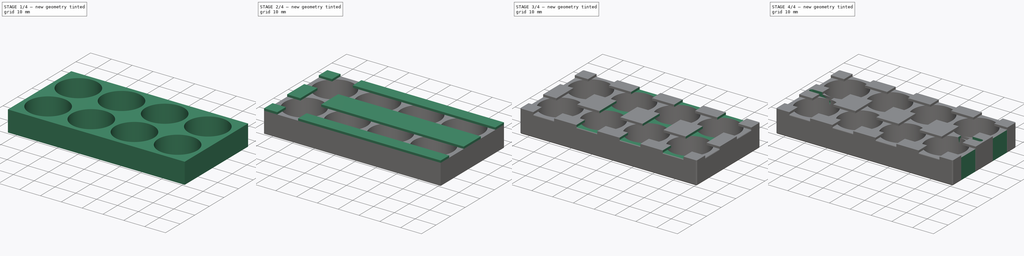
[diagram: build sequence overview — one tinted view per stage of 4, left to right]
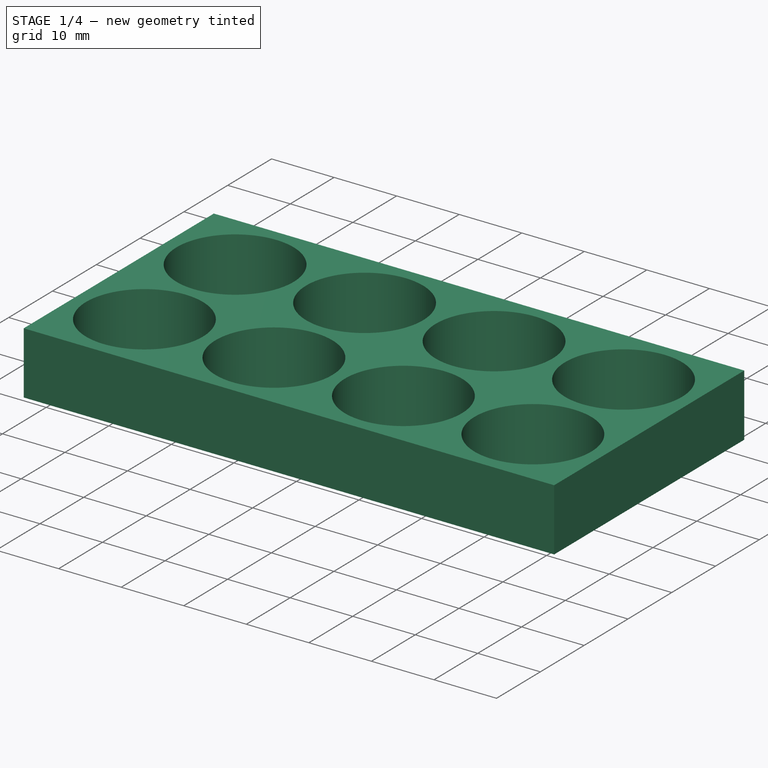
[diagram: stage 1 of 4 — iso view after this stage's code; geometry added in this stage tinted green]
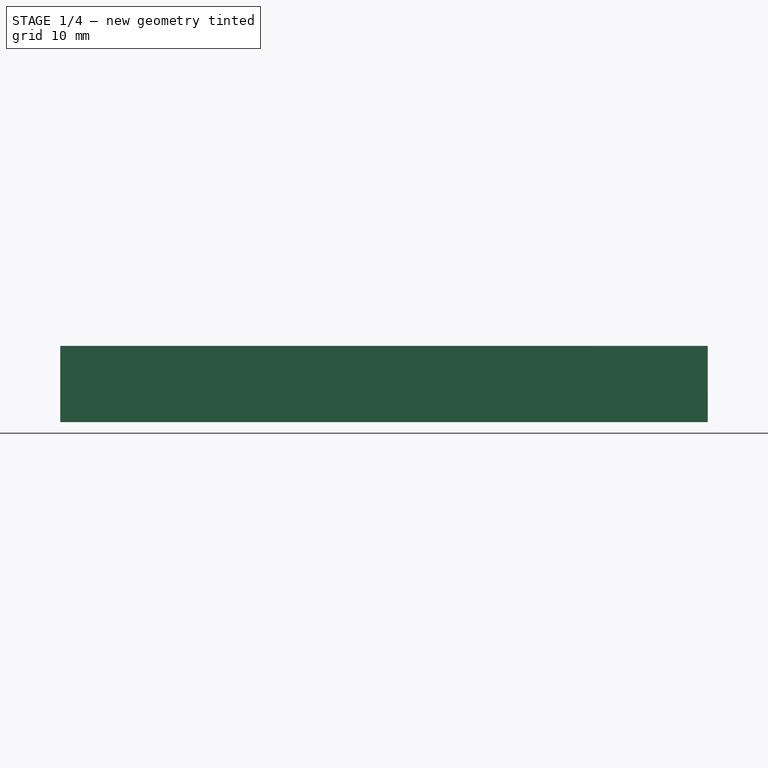
[diagram: stage 1 of 4 — front view after this stage's code; geometry added in this stage tinted green]
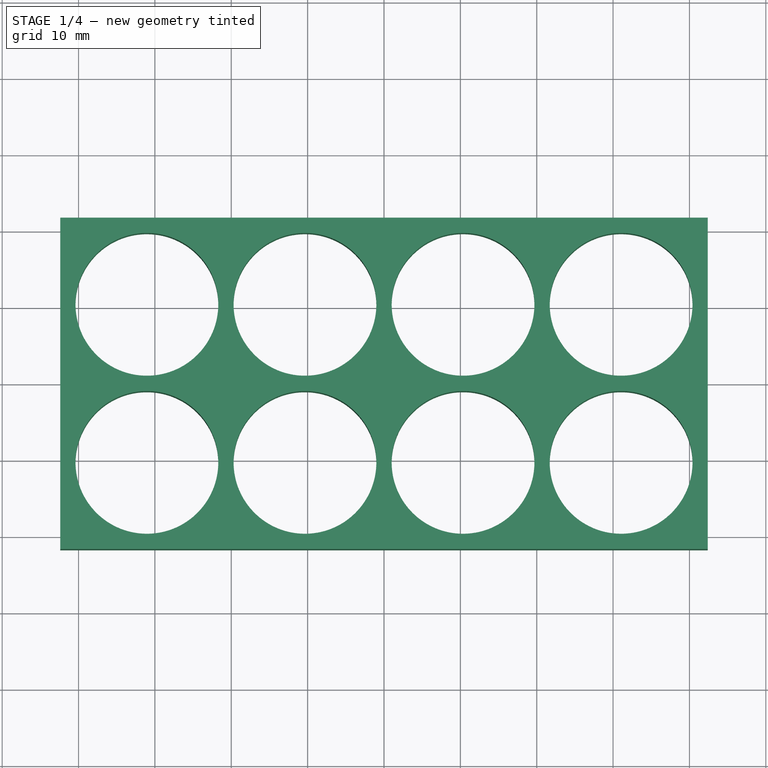
[diagram: stage 1 of 4 — top view after this stage's code; geometry added in this stage tinted green]
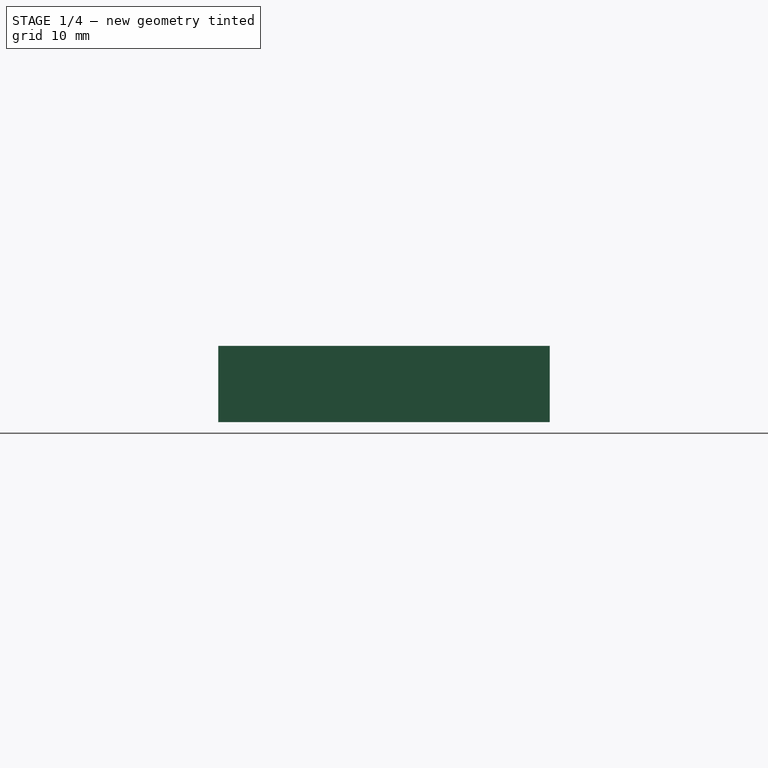
[diagram: stage 1 of 4 — right view after this stage's code; geometry added in this stage tinted green]
FCSTD DOCUMENT  (FreeCAD 0.19R24276 (Git))
Label: suporte18650_novo
License: All rights reserved
LicenseURL: http://en.wikipedia.org/wiki/All_rights_reserved
objects: Sketcher::SketchObject×9, PartDesign::Pocket×7, PartDesign::LinearPattern×3, PartDesign::Pad×2, PartDesign::MultiTransform×2, PartDesign::Fillet×1, PartDesign::Body×1
note: 35 computed .brp shape members not serialized (recipe doc carries the construction recipe); baked Part::Feature solids carry a one-line shape summary decoded from their .brp

FEATURE [Sketcher::SketchObject] Sketch
  FullyConstrained = true
  MapMode = 5
  Support = -> [XY_Plane]
  expr: Constraints[8] = 18.7 * 4 + 2 * 5
  expr: Constraints[9] = 18.7 * 2 + 2 * 3
  expr: Constraints[10] = (18.7 * 4 + 2 * 5) / 2
  expr: Constraints[11] = (18.7 * 2 + 2 * 3) / 2
  sketch-geometry (4):
    g0: LineSegment StartX=-42.4 StartY=21.7 StartZ=0 EndX=42.4 EndY=21.7 EndZ=0
    g1: LineSegment StartX=42.4 StartY=21.7 StartZ=0 EndX=42.4 EndY=-21.7 EndZ=0
    g2: LineSegment StartX=42.4 StartY=-21.7 StartZ=0 EndX=-42.4 EndY=-21.7 EndZ=0
    g3: LineSegment StartX=-42.4 StartY=-21.7 StartZ=0 EndX=-42.4 EndY=21.7 EndZ=0
  constraints (12):
    c: Coincident(g0,g1)
    c: Coincident(g1,g2)
    c: Coincident(g2,g3)
    c: Coincident(g3,g0)
    c: Horizontal(g0)
    c: Horizontal(g2)
    c: Vertical(g1)
    c: Vertical(g3)
    c: DistanceX(g0,g0) = 84.8
    c: DistanceY(g1,g1) = 43.4
    c: DistanceX(g0) = 42.4
    c: DistanceY(g0) = 21.7
FEATURE [PartDesign::Pad] Pad
  Direction = (1,1,1)
  Length = 10
  Length2 = 100
  Profile = -> Sketch
  Type = 0
FEATURE [Sketcher::SketchObject] Sketch001
  FullyConstrained = true
  MapMode = 5
  Placement = pos=(0,0,10) rot=(0,0,1;0rad)
  Support = -> [Pad]
  expr: Constraints[0] = 18.7 / 2
  expr: Constraints[2] = -(18.7 / 2 + 1)
  expr: Constraints[1] = -(1 + 18.7 + 2 + 18.7 / 2)
  sketch-geometry (1):
    g0: Circle CenterX=-31.05 CenterY=-10.35 CenterZ=0 NormalX=0 NormalY=0 NormalZ=1 AngleXU=0 Radius=9.35
  constraints (3):
    c: Radius(g0) = 9.35
    c: DistanceX(g0) = -31.05
    c: DistanceY(g0) = -10.35
FEATURE [PartDesign::Pocket] Pocket
  BaseFeature = -> Pad
  Length = 10
  Length2 = 100
  Profile = -> Sketch001
  Type = 0
FEATURE [PartDesign::LinearPattern] LinearPattern
  Direction = -> Sketch001 [H_Axis]
  Length = 62.1
  Occurrences = 4
  expr: Length = 18.7 * 3 + 2 * 3
FEATURE [PartDesign::LinearPattern] LinearPattern001
  Direction = -> Sketch001 [V_Axis]
  Length = 20.7
  Occurrences = 2
  expr: Length = 18.7 + 2
FEATURE [PartDesign::MultiTransform] MultiTransform
  BaseFeature = -> Pocket
  Originals = -> [Pocket]
  Transformations = -> [LinearPattern,LinearPattern001]
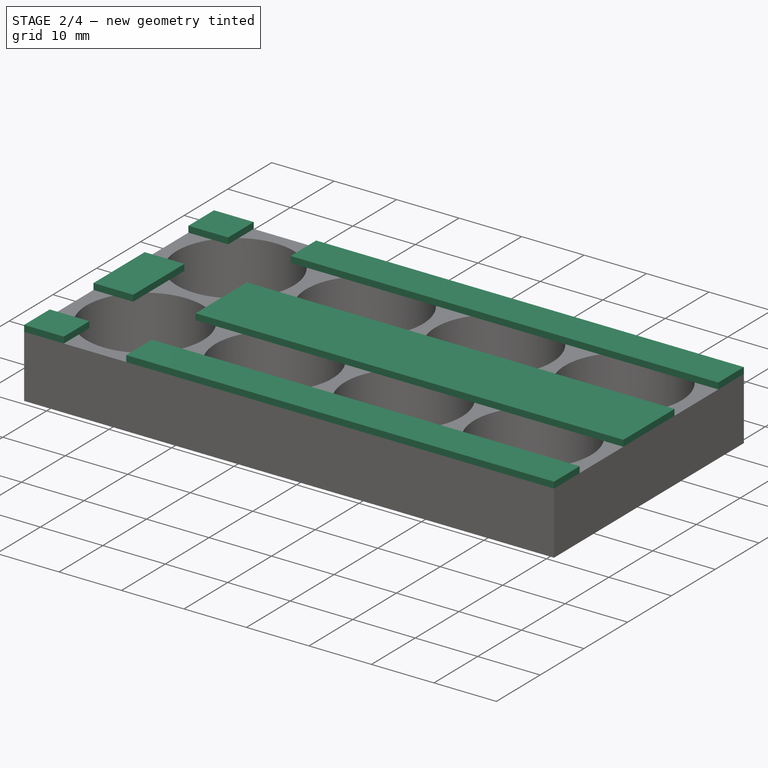
[diagram: stage 2 of 4 — iso view after this stage's code; geometry added in this stage tinted green]
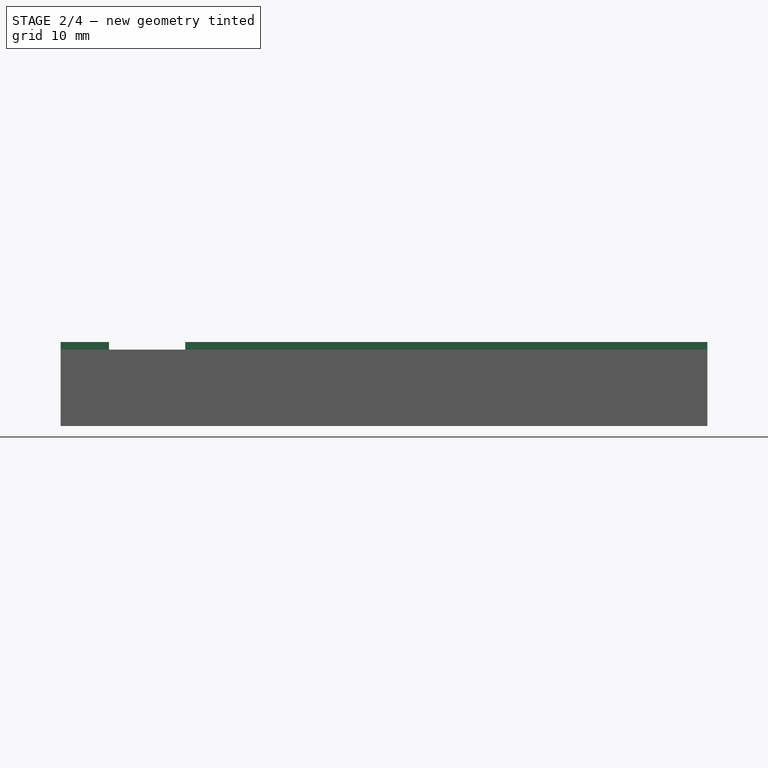
[diagram: stage 2 of 4 — front view after this stage's code; geometry added in this stage tinted green]
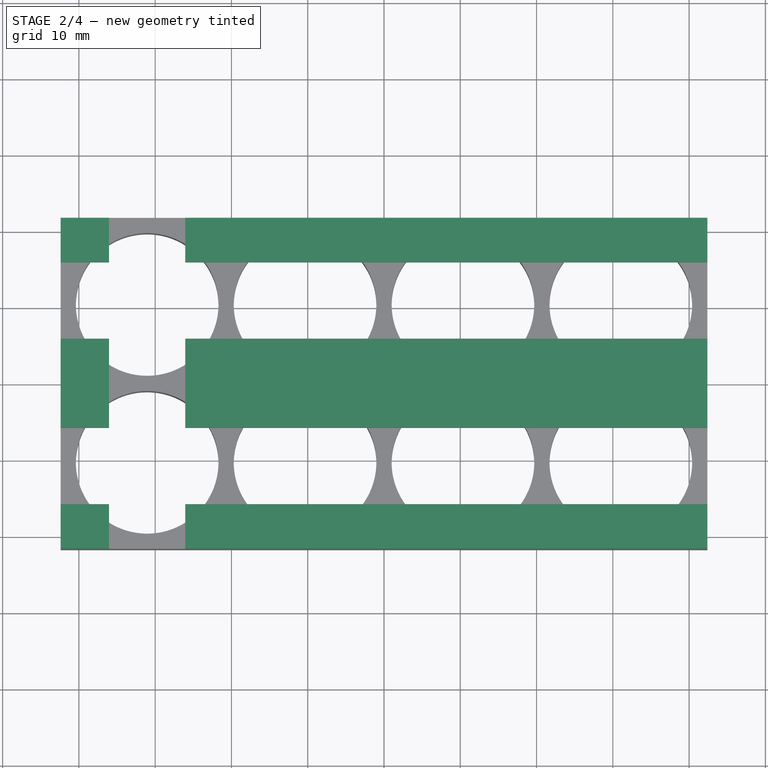
[diagram: stage 2 of 4 — top view after this stage's code; geometry added in this stage tinted green]
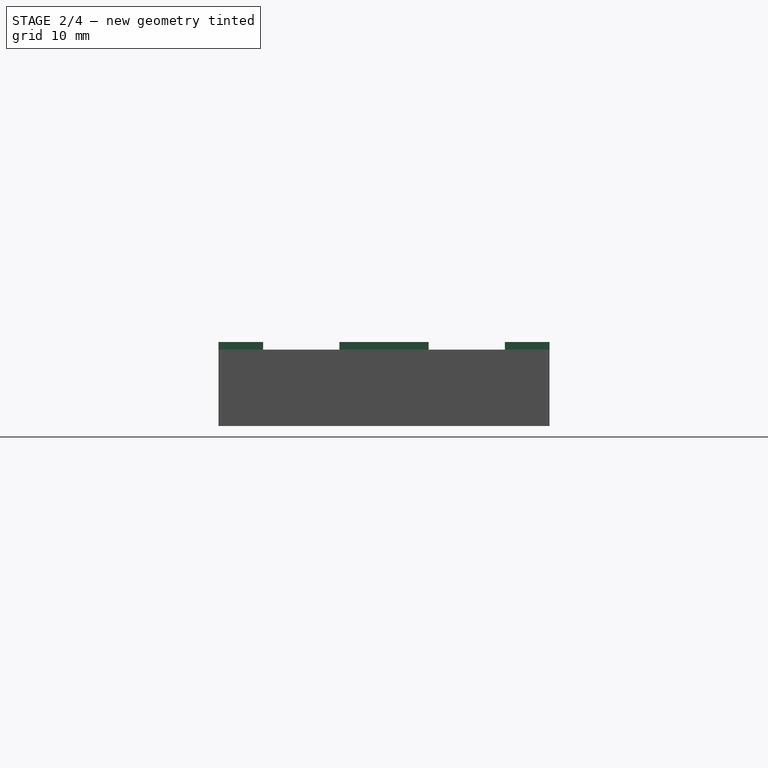
[diagram: stage 2 of 4 — right view after this stage's code; geometry added in this stage tinted green]
FEATURE [Sketcher::SketchObject] Sketch002
  FullyConstrained = true
  MapMode = 5
  Placement = pos=(0,0,10) rot=(0,0,1;0rad)
  Support = -> [MultiTransform]
  expr: Constraints[8] = 18.7 * 4 + 2 * 5
  expr: Constraints[9] = 18.7 * 2 + 2 * 3
  expr: Constraints[10] = (18.7 * 4 + 2 * 5) / 2
  expr: Constraints[11] = (18.7 * 2 + 2 * 3) / 2
  sketch-geometry (4):
    g0: LineSegment StartX=-42.4 StartY=21.7 StartZ=0 EndX=42.4 EndY=21.7 EndZ=0
    g1: LineSegment StartX=42.4 StartY=21.7 StartZ=0 EndX=42.4 EndY=-21.7 EndZ=0
    g2: LineSegment StartX=42.4 StartY=-21.7 StartZ=0 EndX=-42.4 EndY=-21.7 EndZ=0
    g3: LineSegment StartX=-42.4 StartY=-21.7 StartZ=0 EndX=-42.4 EndY=21.7 EndZ=0
  constraints (12):
    c: Coincident(g0,g1)
    c: Coincident(g1,g2)
    c: Coincident(g2,g3)
    c: Coincident(g3,g0)
    c: Horizontal(g0)
    c: Horizontal(g2)
    c: Vertical(g1)
    c: Vertical(g3)
    c: DistanceX(g0,g0) = 84.8
    c: DistanceY(g1,g1) = 43.4
    c: DistanceX(g0) = 42.4
    c: DistanceY(g0) = 21.7
FEATURE [PartDesign::Pad] Pad001
  BaseFeature = -> MultiTransform
  Direction = (1,1,1)
  Length = 1
  Length2 = 100
  Profile = -> Sketch002
  Type = 0
FEATURE [Sketcher::SketchObject] Sketch003
  FullyConstrained = true
  MapMode = 5
  Placement = pos=(0,0,11) rot=(0,0,1;0rad)
  Support = -> [Pad001]
  expr: Constraints[9] = 18.7 * 4 + 2 * 5
  expr: Constraints[10] = (18.7 * 4 + 2 * 5) / 2
  expr: Constraints[11] = ((18.7 * 2 + 2 * 3) / 2 - 10) / 2
  expr: Constraints[23] = -((18.7 * 2 + 2 * 3) / 2 - 10) / 2
  sketch-geometry (8):
    g0: LineSegment StartX=-42.4 StartY=15.85 StartZ=0 EndX=42.4 EndY=15.85 EndZ=0
    g1: LineSegment StartX=42.4 StartY=15.85 StartZ=0 EndX=42.4 EndY=5.85 EndZ=0
    g2: LineSegment StartX=42.4 StartY=5.85 StartZ=0 EndX=-42.4 EndY=5.85 EndZ=0
    g3: LineSegment StartX=-42.4 StartY=5.85 StartZ=0 EndX=-42.4 EndY=15.85 EndZ=0
    g4: LineSegment StartX=-42.4 StartY=-5.85 StartZ=0 EndX=42.4 EndY=-5.85 EndZ=0
    g5: LineSegment StartX=42.4 StartY=-5.85 StartZ=0 EndX=42.4 EndY=-15.85 EndZ=0
    g6: LineSegment StartX=42.4 StartY=-15.85 StartZ=0 EndX=-42.4 EndY=-15.85 EndZ=0
    g7: LineSegment StartX=-42.4 StartY=-15.85 StartZ=0 EndX=-42.4 EndY=-5.85 EndZ=0
  constraints (24):
    c: Coincident(g0,g1)
    c: Coincident(g1,g2)
    c: Coincident(g2,g3)
    c: Coincident(g3,g0)
    c: Horizontal(g0)
    c: Horizontal(g2)
    c: Vertical(g1)
    c: Vertical(g3)
    c: DistanceY(g1,g1) = 10
    c: DistanceX(g0,g0) = 84.8
    c: DistanceX(g1) = 42.4
    c: DistanceY(g1) = 5.85
    c: Coincident(g4,g5)
    c: Coincident(g5,g6)
    c: Coincident(g6,g7)
    c: Coincident(g7,g4)
    c: Horizontal(g4)
    c: Horizontal(g6)
    c: Vertical(g5)
    c: Vertical(g7)
    c: Equal(g1,g5)
    c: Equal(g0,g4)
    c: DistanceX(g4) = 42.4
    c: DistanceY(g4) = -5.85
FEATURE [PartDesign::Pocket] Pocket001
  BaseFeature = -> Pad001
  Length = 1
  Length2 = 100
  Profile = -> Sketch003
  Type = 0
FEATURE [Sketcher::SketchObject] Sketch004
  FullyConstrained = true
  MapMode = 5
  Placement = pos=(0,0,11) rot=(0,0,1;0rad)
  Support = -> [Pocket001]
  expr: Constraints[8] = 18.7 * 2 + 2 * 3
  expr: Constraints[11] = (18.7 * 2 + 2 * 3) / 2
  expr: Constraints[10] = -(1 + 18.7 + 2 + 18.7 / 2 - 5)
  sketch-geometry (4):
    g0: LineSegment StartX=-36.05 StartY=21.7 StartZ=0 EndX=-26.05 EndY=21.7 EndZ=0
    g1: LineSegment StartX=-26.05 StartY=21.7 StartZ=0 EndX=-26.05 EndY=-21.7 EndZ=0
    g2: LineSegment StartX=-26.05 StartY=-21.7 StartZ=0 EndX=-36.05 EndY=-21.7 EndZ=0
    g3: LineSegment StartX=-36.05 StartY=-21.7 StartZ=0 EndX=-36.05 EndY=21.7 EndZ=0
  constraints (12):
    c: Coincident(g0,g1)
    c: Coincident(g1,g2)
    c: Coincident(g2,g3)
    c: Coincident(g3,g0)
    c: Horizontal(g0)
    c: Horizontal(g2)
    c: Vertical(g1)
    c: Vertical(g3)
    c: DistanceY(g3,g3) = 43.4
    c: DistanceX(g0,g0) = 10
    c: DistanceX(g0) = -26.05
    c: DistanceY(g0) = 21.7
FEATURE [PartDesign::Pocket] Pocket002
  BaseFeature = -> Pocket001
  Length = 1
  Length2 = 100
  Profile = -> Sketch004
  Type = 0
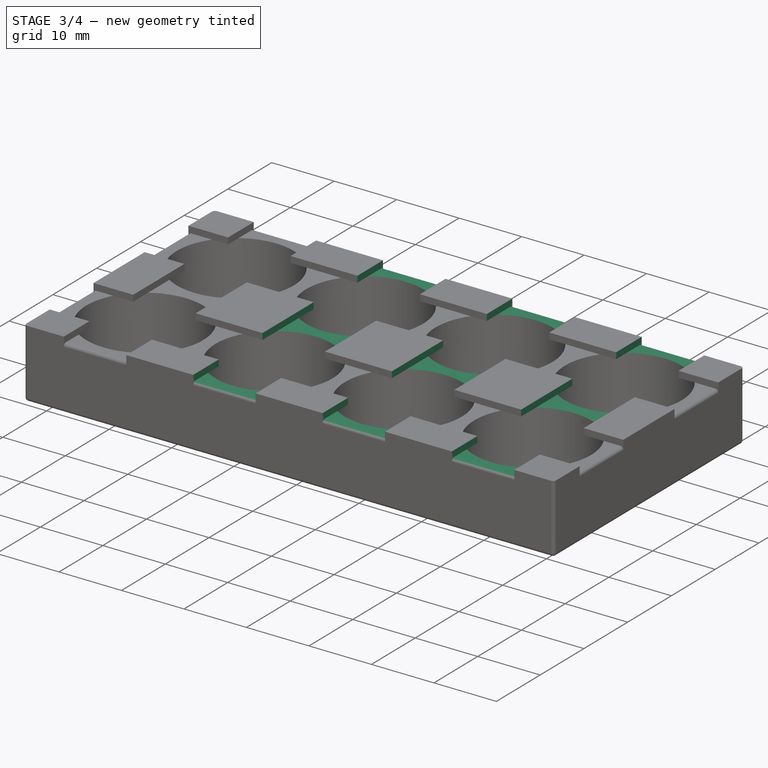
[diagram: stage 3 of 4 — iso view after this stage's code; geometry added in this stage tinted green]
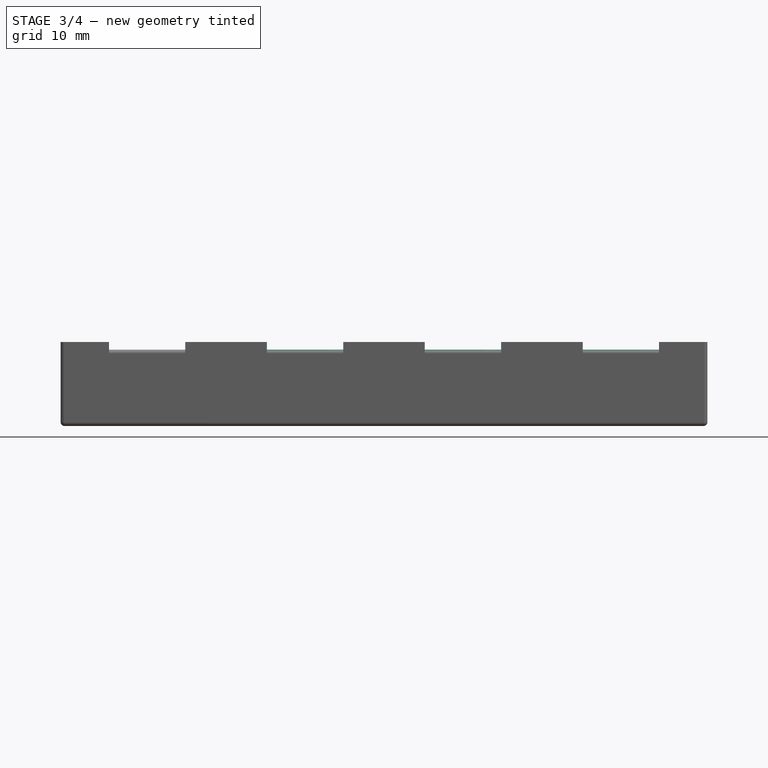
[diagram: stage 3 of 4 — front view after this stage's code; geometry added in this stage tinted green]
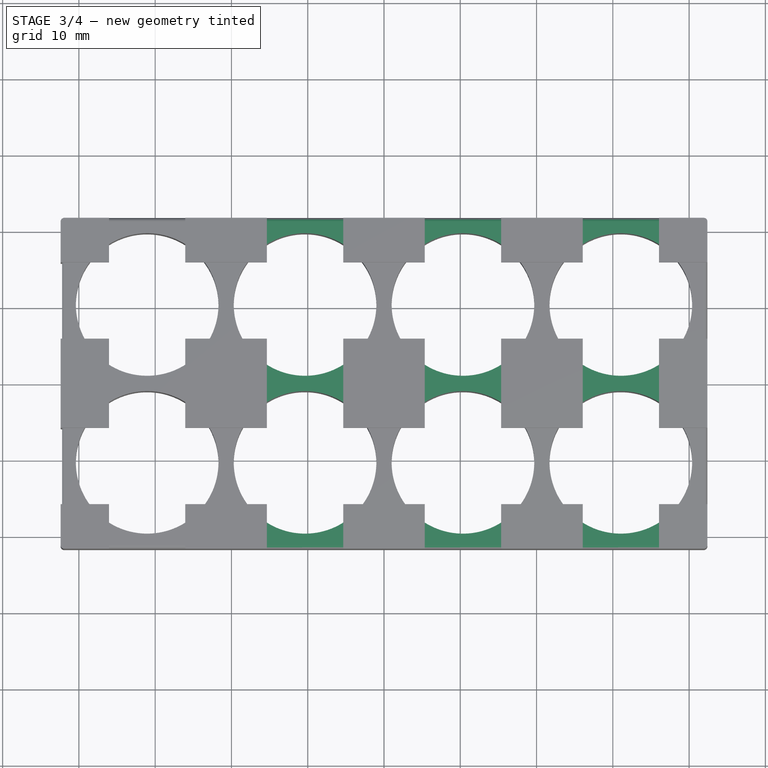
[diagram: stage 3 of 4 — top view after this stage's code; geometry added in this stage tinted green]
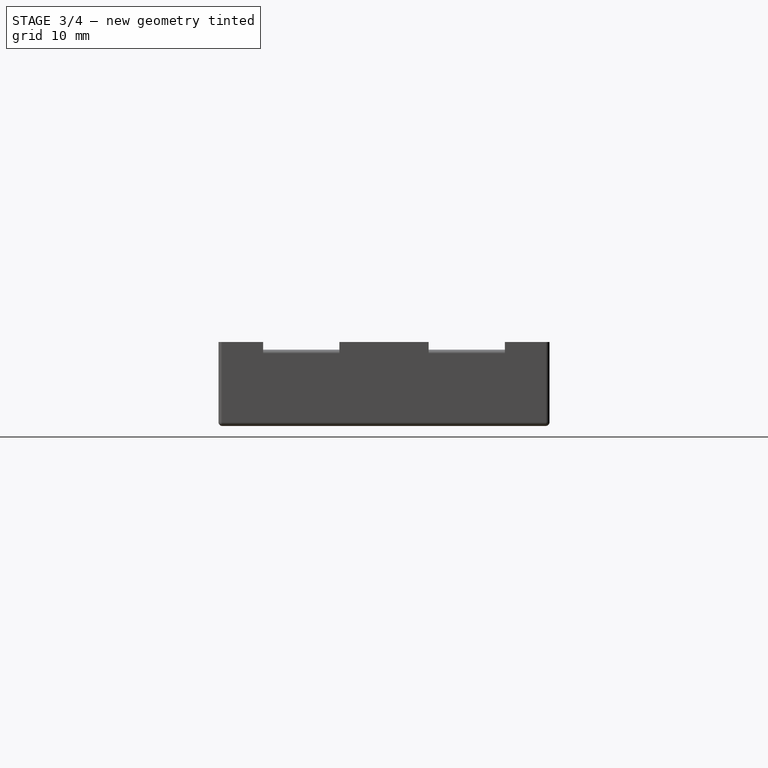
[diagram: stage 3 of 4 — right view after this stage's code; geometry added in this stage tinted green]
FEATURE [PartDesign::LinearPattern] LinearPattern002
  Direction = -> Sketch004 [H_Axis]
  Length = 62.1
  Occurrences = 4
  expr: Length = 18.7 * 3 + 2 * 3
FEATURE [PartDesign::MultiTransform] MultiTransform001
  BaseFeature = -> Pocket002
  Originals = -> [Pocket002]
  Transformations = -> [LinearPattern002]
FEATURE [PartDesign::Fillet] Fillet
  Base = -> MultiTransform001 [Face14,Face3,Face2,Face1,Face4]
  BaseFeature = -> MultiTransform001
  Radius = 0.5
  SupportTransform = false
FEATURE [Sketcher::SketchObject] Sketch005
  ExternalGeometry = -> [Fillet]
  FullyConstrained = true
  MapMode = 5
  Placement = pos=(-42.4,0,0) rot=(0.57735,-0.57735,-0.57735;2.0944rad)
  Support = -> [Fillet]
  sketch-geometry (8):
    g0: LineSegment StartX=-15.85 StartY=10 StartZ=0 EndX=-5.85 EndY=10 EndZ=0
    g1: LineSegment StartX=-5.85 StartY=10 StartZ=0 EndX=-5.85 EndY=0 EndZ=0
    g2: LineSegment StartX=-5.85 StartY=0 StartZ=0 EndX=-15.85 EndY=0 EndZ=0
    g3: LineSegment StartX=-15.85 StartY=0 StartZ=0 EndX=-15.85 EndY=10 EndZ=0
    g4: LineSegment StartX=5.85 StartY=10 StartZ=0 EndX=15.85 EndY=10 EndZ=0
    g5: LineSegment StartX=15.85 StartY=10 StartZ=0 EndX=15.85 EndY=0 EndZ=0
    g6: LineSegment StartX=15.85 StartY=0 StartZ=0 EndX=5.85 EndY=0 EndZ=0
    g7: LineSegment StartX=5.85 StartY=0 StartZ=0 EndX=5.85 EndY=10 EndZ=0
  constraints (24):
    c: Coincident(g0,g1)
    c: Coincident(g1,g2)
    c: Coincident(g2,g3)
    c: Coincident(g3,g0)
    c: Horizontal(g0)
    c: Horizontal(g2)
    c: Vertical(g1)
    c: Vertical(g3)
    c: Coincident(g4,g5)
    c: Coincident(g5,g6)
    c: Coincident(g6,g7)
    c: Coincident(g7,g4)
    c: Horizontal(g4)
    c: Horizontal(g6)
    c: Vertical(g5)
    c: Vertical(g7)
    c: DistanceY(g-7,g1) = -0.5
    c: DistanceX(g0,g-3) = 0
    c: DistanceX(g0,g-4) = 0
    c: DistanceY(g0,g-4) = -0.5
    c: DistanceX(g-5,g4) = 0
    c: DistanceX(g4,g-6) = 0
    c: DistanceY(g4,g-5) = -0.5
    c: DistanceY(g-7,g5) = -0.5
FEATURE [PartDesign::Pocket] Pocket003
  BaseFeature = -> Fillet
  Length = 0.2
  Length2 = 100
  Profile = -> Sketch005
  Type = 0
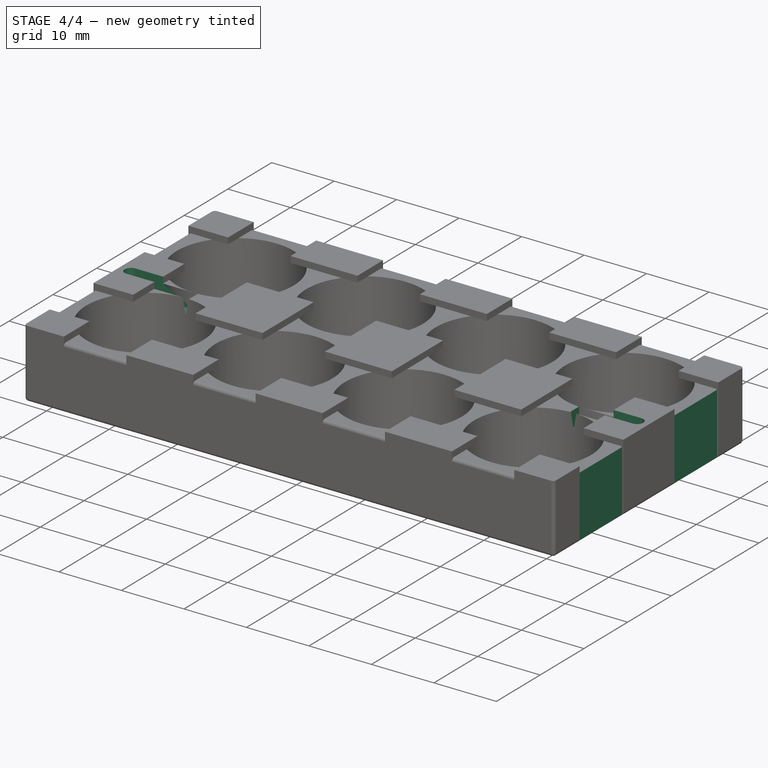
[diagram: stage 4 of 4 — iso view after this stage's code; geometry added in this stage tinted green]
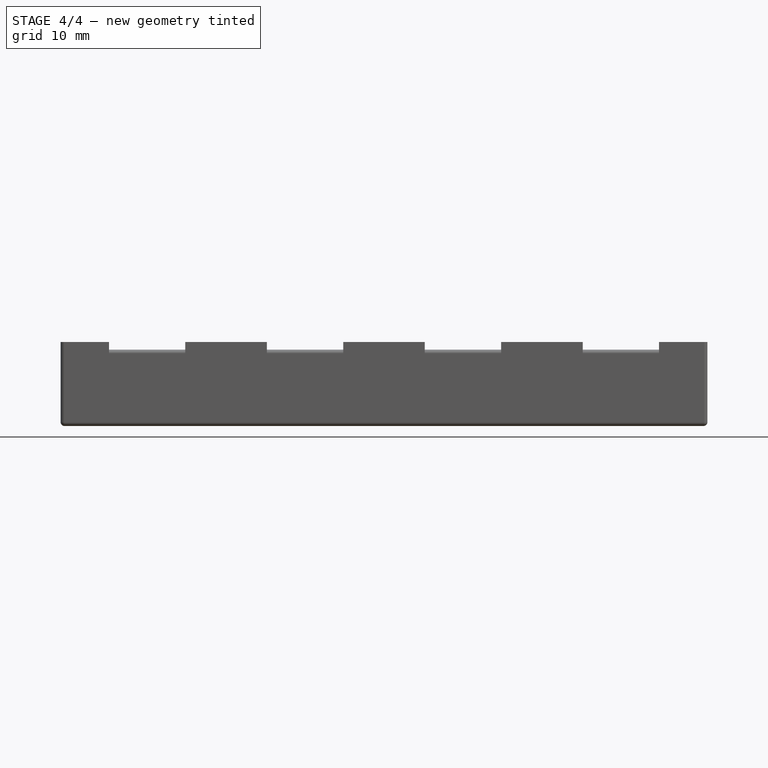
[diagram: stage 4 of 4 — front view after this stage's code; geometry added in this stage tinted green]
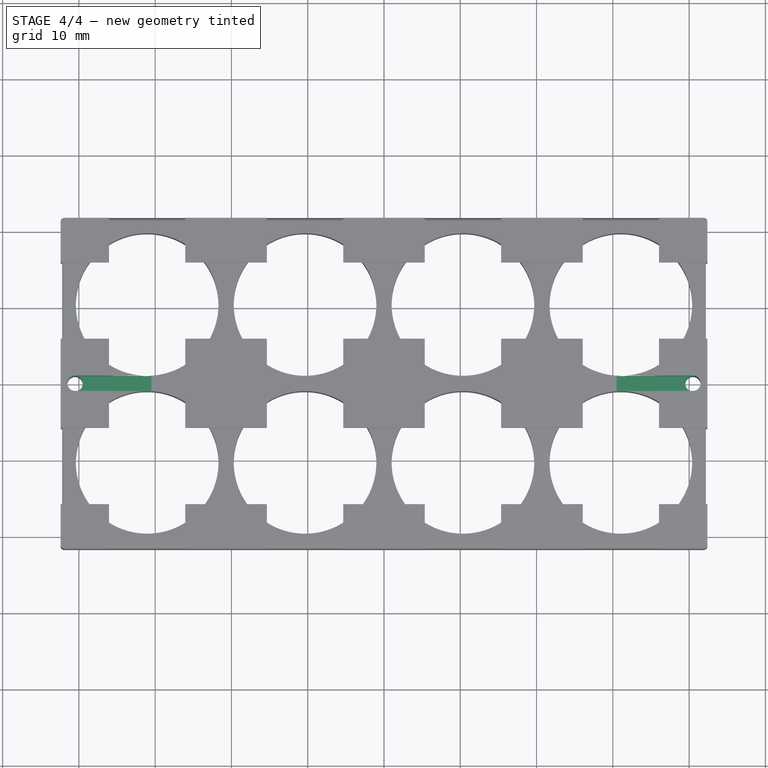
[diagram: stage 4 of 4 — top view after this stage's code; geometry added in this stage tinted green]
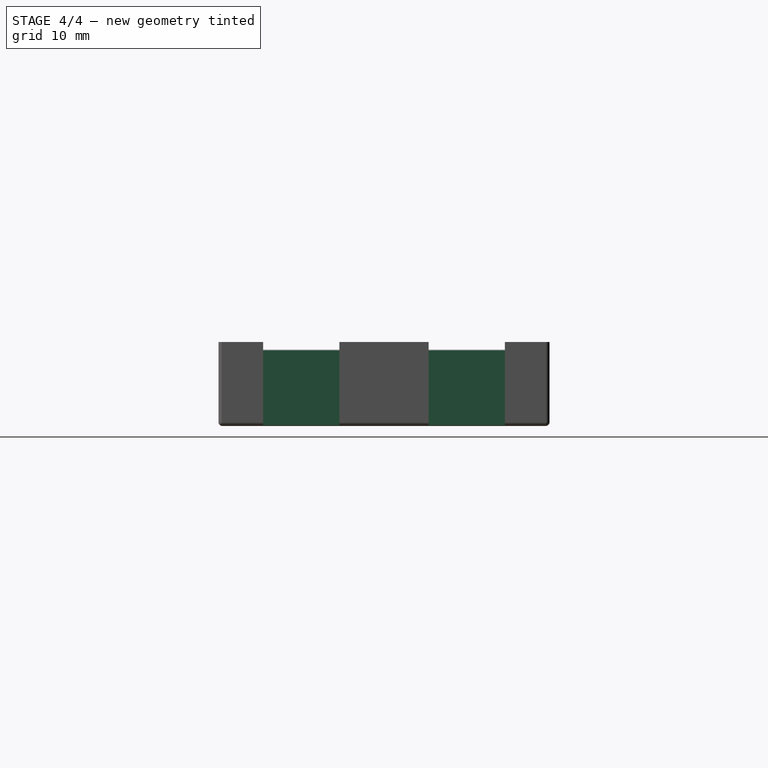
[diagram: stage 4 of 4 — right view after this stage's code; geometry added in this stage tinted green]
FEATURE [Sketcher::SketchObject] Sketch006
  ExternalGeometry = -> [Pocket003]
  FullyConstrained = true
  MapMode = 5
  Placement = pos=(42.4,0,0) rot=(0.57735,0.57735,0.57735;2.0944rad)
  Support = -> [Pocket003]
  sketch-geometry (8):
    g0: LineSegment StartX=-15.85 StartY=10 StartZ=0 EndX=-5.85 EndY=10 EndZ=0
    g1: LineSegment StartX=-5.85 StartY=10 StartZ=0 EndX=-5.85 EndY=0 EndZ=0
    g2: LineSegment StartX=-5.85 StartY=0 StartZ=0 EndX=-15.85 EndY=0 EndZ=0
    g3: LineSegment StartX=-15.85 StartY=0 StartZ=0 EndX=-15.85 EndY=10 EndZ=0
    g4: LineSegment StartX=5.85 StartY=10 StartZ=0 EndX=15.85 EndY=10 EndZ=0
    g5: LineSegment StartX=15.85 StartY=10 StartZ=0 EndX=15.85 EndY=-1.8e-15 EndZ=0
    g6: LineSegment StartX=15.85 StartY=-1.8e-15 StartZ=0 EndX=5.85 EndY=-1.8e-15 EndZ=0
    g7: LineSegment StartX=5.85 StartY=-1.8e-15 StartZ=0 EndX=5.85 EndY=10 EndZ=0
  constraints (24):
    c: Coincident(g0,g1)
    c: Coincident(g1,g2)
    c: Coincident(g2,g3)
    c: Coincident(g3,g0)
    c: Horizontal(g0)
    c: Horizontal(g2)
    c: Vertical(g1)
    c: Vertical(g3)
    c: Coincident(g4,g5)
    c: Coincident(g5,g6)
    c: Coincident(g6,g7)
    c: Coincident(g7,g4)
    c: Horizontal(g4)
    c: Horizontal(g6)
    c: Vertical(g5)
    c: Vertical(g7)
    c: DistanceY(g-7,g1) = -0.5
    c: Equal(g2,g6)
    c: DistanceX(g-5,g4) = 0
    c: DistanceX(g0,g-4) = 0
    c: DistanceX(g-3,g0) = 0
    c: DistanceY(g0,g-3) = -0.5
    c: Equal(g7,g1)
    c: DistanceY(g-5,g4) = 0.5
FEATURE [PartDesign::Pocket] Pocket004
  BaseFeature = -> Pocket003
  Length = 0.2
  Length2 = 100
  Profile = -> Sketch006
  Type = 0
FEATURE [Sketcher::SketchObject] Sketch007
  ExternalGeometry = -> [Pocket004]
  FullyConstrained = true
  MapMode = 5
  Placement = pos=(0,0,11) rot=(0,0,1;0rad)
  Support = -> [Pocket004]
  sketch-geometry (2):
    g0: Circle CenterX=-40.5 CenterY=0 CenterZ=0 NormalX=0 NormalY=0 NormalZ=1 AngleXU=0 Radius=1
    g1: Circle CenterX=40.5 CenterY=0 CenterZ=0 NormalX=0 NormalY=0 NormalZ=1 AngleXU=0 Radius=1
  constraints (6):
    c: DistanceX(g0) = -40.5
    c: DistanceY(g0) = 0
    c: Radius(g0) = 1
    c: Radius(g1) = 1
    c: DistanceX(g1) = 40.5
    c: DistanceY(g1) = 0
FEATURE [PartDesign::Pocket] Pocket005
  BaseFeature = -> Pocket004
  Length = 20
  Length2 = 100
  Profile = -> Sketch007
  Type = 0
FEATURE [Sketcher::SketchObject] Sketch008
  FullyConstrained = true
  MapMode = 5
  Placement = pos=(0,0,11) rot=(0,0,1;0rad)
  Support = -> [Pocket005]
  sketch-geometry (8):
    g0: LineSegment StartX=-40.5 StartY=1 StartZ=0 EndX=-30.5 EndY=1 EndZ=0
    g1: LineSegment StartX=-30.5 StartY=1 StartZ=0 EndX=-30.5 EndY=-1 EndZ=0
    g2: LineSegment StartX=-30.5 StartY=-1 StartZ=0 EndX=-40.5 EndY=-1 EndZ=0
    g3: LineSegment StartX=-40.5 StartY=-1 StartZ=0 EndX=-40.5 EndY=1 EndZ=0
    g4: LineSegment StartX=30.5 StartY=1 StartZ=0 EndX=40.5 EndY=1 EndZ=0
    g5: LineSegment StartX=40.5 StartY=1 StartZ=0 EndX=40.5 EndY=-1 EndZ=0
    g6: LineSegment StartX=40.5 StartY=-1 StartZ=0 EndX=30.5 EndY=-1 EndZ=0
    g7: LineSegment StartX=30.5 StartY=-1 StartZ=0 EndX=30.5 EndY=1 EndZ=0
  constraints (24):
    c: Coincident(g0,g1)
    c: Coincident(g1,g2)
    c: Coincident(g2,g3)
    c: Coincident(g3,g0)
    c: Horizontal(g0)
    c: Horizontal(g2)
    c: Vertical(g1)
    c: Vertical(g3)
    c: DistanceX(g0) = -40.5
    c: DistanceY(g0) = 1
    c: DistanceY(g1,g1) = 2
    c: DistanceX(g0,g0) = 10
    c: Coincident(g4,g5)
    c: Coincident(g5,g6)
    c: Coincident(g6,g7)
    c: Coincident(g7,g4)
    c: Horizontal(g4)
    c: Horizontal(g6)
    c: Vertical(g5)
    c: Vertical(g7)
    c: DistanceX(g4) = 40.5
    c: DistanceY(g4) = 1
    c: Equal(g1,g5)
    c: Equal(g6,g2)
FEATURE [PartDesign::Pocket] Pocket006
  BaseFeature = -> Pocket005
  Length = 3.5
  Length2 = 100
  Profile = -> Sketch008
  Type = 0
FEATURE [PartDesign::Body] Body
  Group = -> [Sketch,Pad,Sketch001,Pocket,MultiTransform,LinearPattern,LinearPattern001,Sketch002,Pad001,Sketch003,Pocket001,Sketch004,Pocket002,MultiTransform001,LinearPattern002,Fillet,Sketch005,Pocket003,Sketch006,Pocket004,Sketch007,Pocket005,Sketch008,Pocket006]
  Origin = -> Origin
  Tip = -> Pocket006
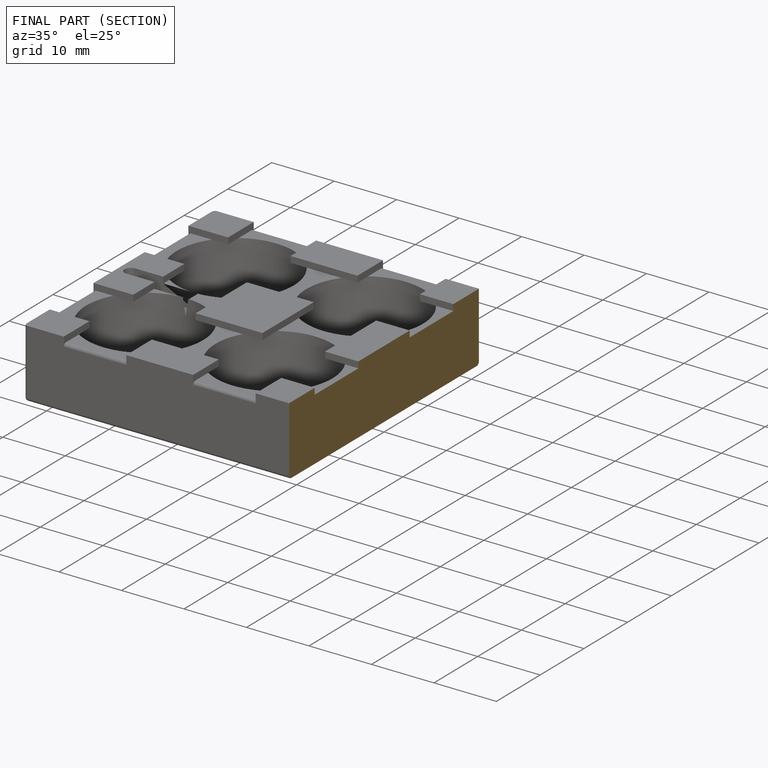
[diagram: finished part — half-section view (interior)]
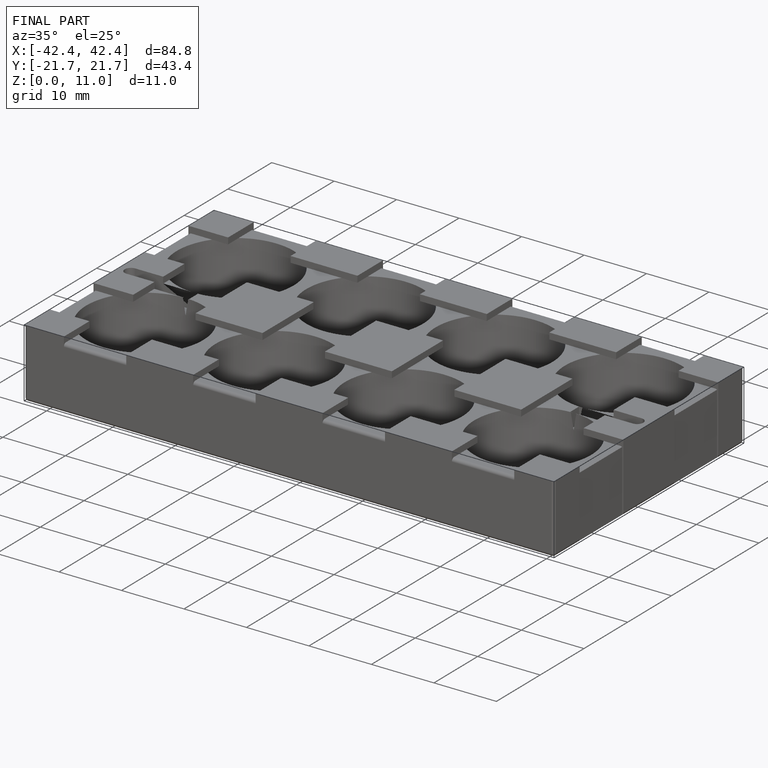
[diagram: finished part — iso view with bounding-box wireframe]
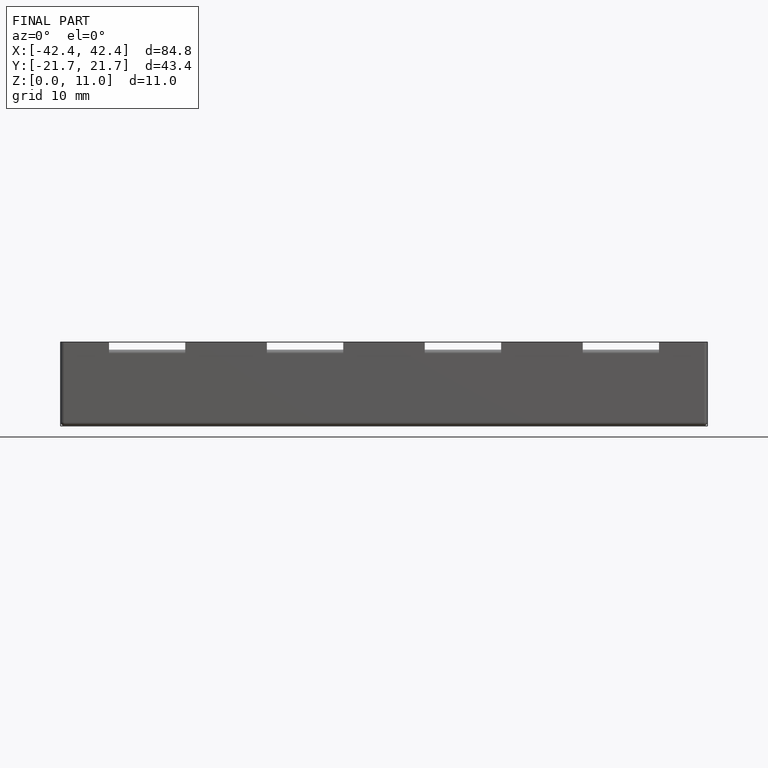
[diagram: finished part — front view with bounding-box wireframe]
